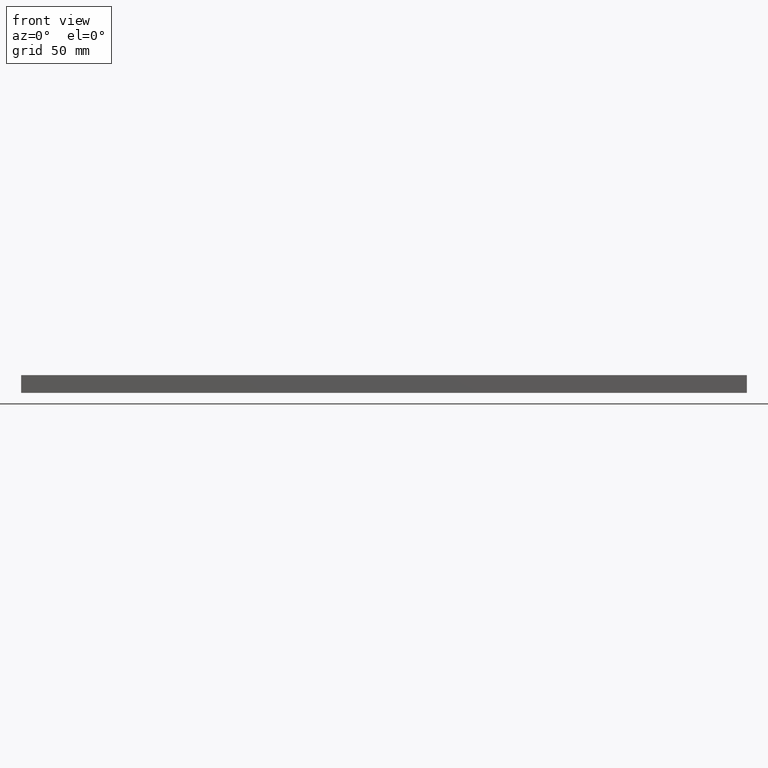
[diagram: clean part render]
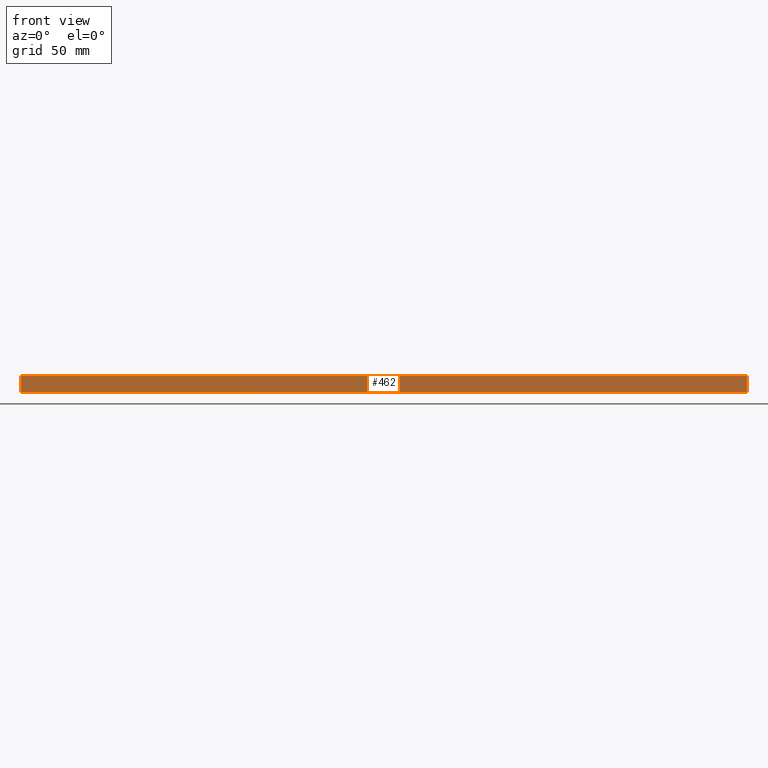
[diagram: same view with one face highlighted and labeled with its STEP entity id]
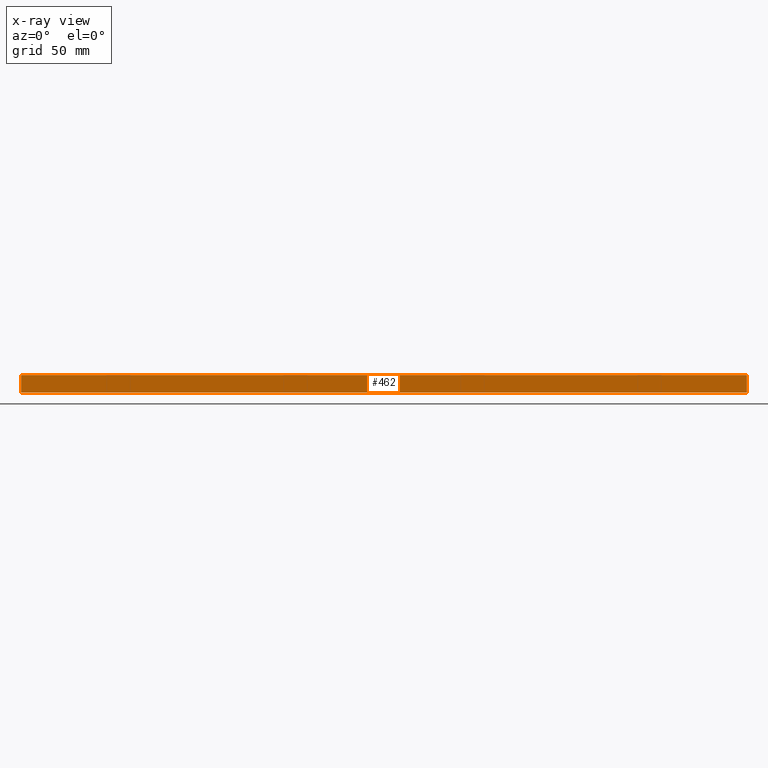
[diagram: x-ray of the same camera — body ghosted, the highlighted face saturated]
A machine part, front view. The second image highlights one B-rep face of the part: STEP entity #462.
The next image is the same camera in x-ray: the body ghosted, the highlighted face saturated — about 0% of this face is hidden behind the body in this view.
In plain terms, the highlighted planar face has unit normal (-0, -1, -0).
Its self-contained STEP definition (entity closure, byte-faithful):
#18 = CARTESIAN_POINT ( 'NONE',  ( 205.0000000000022453, -25.00000000000000000, 2.220650890400619679E-13 ) ) ;
#39 = DIRECTION ( 'NONE',  ( 1.540961891649139084E-35, -4.342972024593210827E-32, 1.000000000000000000 ) ) ;
#71 = CARTESIAN_POINT ( 'NONE',  ( -204.9999999999996305, -25.00000000000000000, 3.885985427338354237E-13 ) ) ;
#75 = ORIENTED_EDGE ( 'NONE', *, *, #286, .T. ) ;
#80 = EDGE_LOOP ( 'NONE', ( #571, #583, #228, #75 ) ) ;
#89 = VECTOR ( 'NONE', #39, 1000.000000000000000 ) ;
#118 = VECTOR ( 'NONE', #533, 1000.000000000000000 ) ;
#137 = VECTOR ( 'NONE', #349, 1000.000000000000000 ) ;
#151 = EDGE_CURVE ( 'NONE', #398, #281, #354, .T. ) ;
#154 = CARTESIAN_POINT ( 'NONE',  ( -204.9999999999996305, -25.00000000000000000, 3.885985427338354237E-13 ) ) ;
#161 = CARTESIAN_POINT ( 'NONE',  ( -204.9999999999996305, -25.00000000000000000, -10.00000000000000888 ) ) ;
#170 = EDGE_CURVE ( 'NONE', #398, #567, #310, .T. ) ;
#185 = CARTESIAN_POINT ( 'NONE',  ( 205.0000000000017337, -25.00000000000000000, -9.999999999999925393 ) ) ;
#228 = ORIENTED_EDGE ( 'NONE', *, *, #151, .T. ) ;
#234 = CARTESIAN_POINT ( 'NONE',  ( -204.9999999999996305, -25.00000000000000000, -10.00000000000000888 ) ) ;
#246 = DIRECTION ( 'NONE',  ( -1.540961891649139084E-35, 4.342972024593210827E-32, -1.000000000000000000 ) ) ;
#269 = LINE ( 'NONE', #185, #89 ) ;
#281 = VERTEX_POINT ( 'NONE', #603 ) ;
#282 = PLANE ( 'NONE',  #342 ) ;
#286 = EDGE_CURVE ( 'NONE', #281, #423, #269, .T. ) ;
#289 = DIRECTION ( 'NONE',  ( 1.000000000000000000, 2.773339119917615797E-32, 1.540961891649054357E-35 ) ) ;
#310 = LINE ( 'NONE', #161, #137 ) ;
#314 = VECTOR ( 'NONE', #289, 1000.000000000000000 ) ;
#342 = AXIS2_PLACEMENT_3D ( 'NONE', #382, #522, #246 ) ;
#349 = DIRECTION ( 'NONE',  ( 1.540961891649139084E-35, -4.342972024593210827E-32, 1.000000000000000000 ) ) ;
#354 = LINE ( 'NONE', #543, #118 ) ;
#382 = CARTESIAN_POINT ( 'NONE',  ( -204.9999999999996305, -25.00000000000000000, -10.00000000000000888 ) ) ;
#398 = VERTEX_POINT ( 'NONE', #234 ) ;
#423 = VERTEX_POINT ( 'NONE', #18 ) ;
#433 = LINE ( 'NONE', #154, #314 ) ;
#462 = ADVANCED_FACE ( 'NONE', ( #468 ), #282, .T. ) ;
#468 = FACE_OUTER_BOUND ( 'NONE', #80, .T. ) ;
#487 = EDGE_CURVE ( 'NONE', #567, #423, #433, .T. ) ;
#522 = DIRECTION ( 'NONE',  ( -1.848892746611746419E-32, -1.000000000000000000, -4.342972024593210827E-32 ) ) ;
#533 = DIRECTION ( 'NONE',  ( 1.000000000000000000, 2.773339119917615797E-32, 1.540961891649054357E-35 ) ) ;
#543 = CARTESIAN_POINT ( 'NONE',  ( -204.9999999999996305, -25.00000000000000000, -10.00000000000000888 ) ) ;
#567 = VERTEX_POINT ( 'NONE', #71 ) ;
#571 = ORIENTED_EDGE ( 'NONE', *, *, #487, .F. ) ;
#583 = ORIENTED_EDGE ( 'NONE', *, *, #170, .F. ) ;
#603 = CARTESIAN_POINT ( 'NONE',  ( 205.0000000000017337, -25.00000000000000000, -9.999999999999925393 ) ) ;